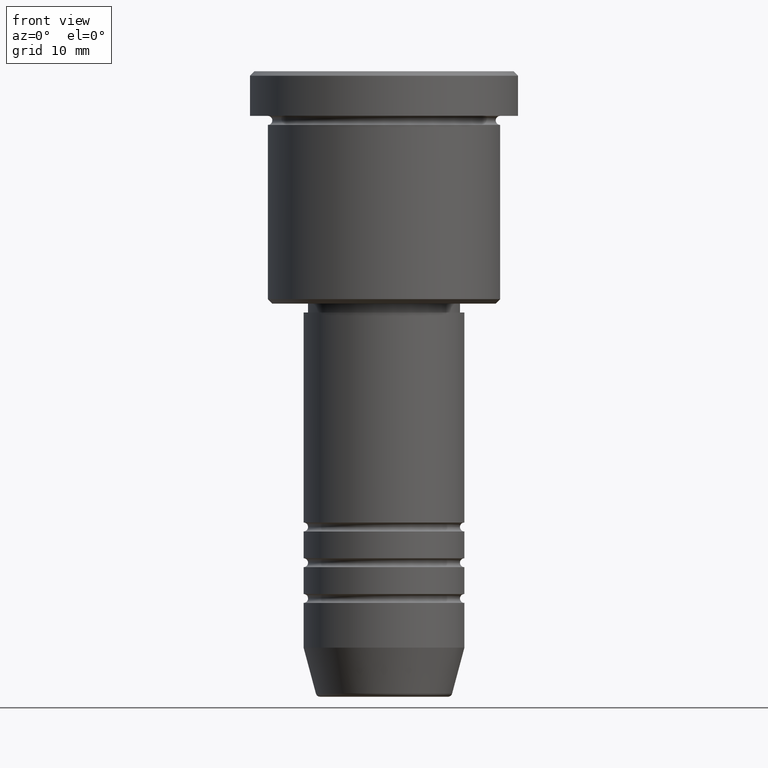
[diagram: clean part render]
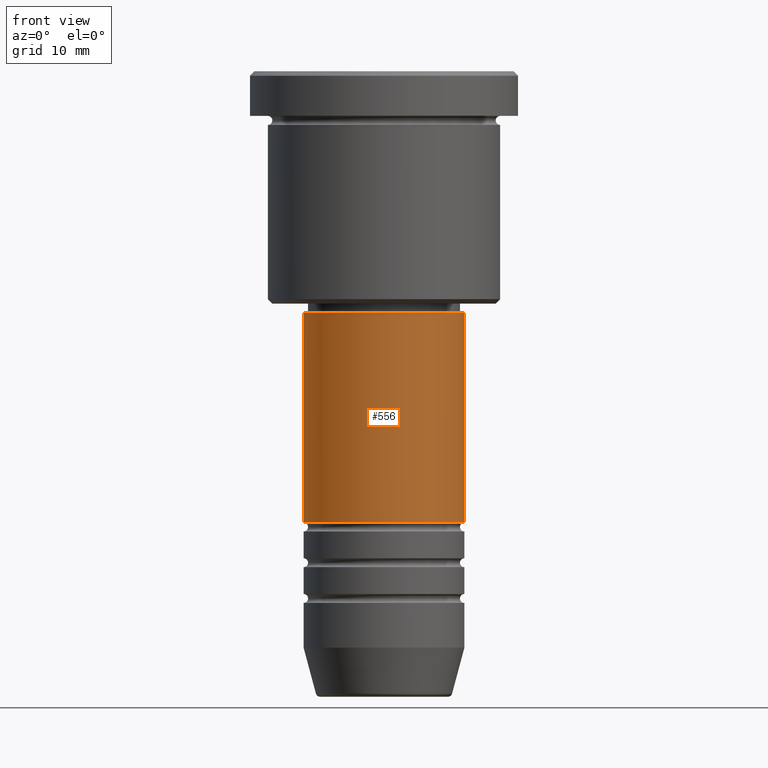
[diagram: same view with one face highlighted and labeled with its STEP entity id]
A machine part, front view. The second image highlights one B-rep face of the part: STEP entity #556.
In plain terms, the highlighted cylindrical surface (partial cylindrical patch) has radius 9 mm, axis along (-0, -0, 1).
Its self-contained STEP definition (entity closure, byte-faithful):
#37 = DIRECTION ( 'NONE',  ( -0.000000000000000000, -0.000000000000000000, 1.000000000000000000 ) ) ;
#45 = VERTEX_POINT ( 'NONE', #822 ) ;
#50 = ORIENTED_EDGE ( 'NONE', *, *, #578, .T. ) ;
#66 = VECTOR ( 'NONE', #989, 1000.000000000000000 ) ;
#90 = DIRECTION ( 'NONE',  ( 1.000000000000000000, 0.000000000000000000, 0.000000000000000000 ) ) ;
#190 = ORIENTED_EDGE ( 'NONE', *, *, #243, .T. ) ;
#211 = EDGE_LOOP ( 'NONE', ( #883, #50, #190, #422 ) ) ;
#243 = EDGE_CURVE ( 'NONE', #870, #45, #516, .T. ) ;
#263 = EDGE_CURVE ( 'NONE', #436, #691, #659, .T. ) ;
#281 = CARTESIAN_POINT ( 'NONE',  ( -8.999999999999998224, 1.102182119232617714E-15, -27.00000000000000355 ) ) ;
#317 = EDGE_CURVE ( 'NONE', #691, #45, #550, .T. ) ;
#413 = AXIS2_PLACEMENT_3D ( 'NONE', #619, #910, #90 ) ;
#422 = ORIENTED_EDGE ( 'NONE', *, *, #317, .F. ) ;
#436 = VERTEX_POINT ( 'NONE', #903 ) ;
#437 = AXIS2_PLACEMENT_3D ( 'NONE', #988, #1166, #687 ) ;
#474 = CIRCLE ( 'NONE', #413, 9.000000000000001776 ) ;
#502 = DIRECTION ( 'NONE',  ( 1.000000000000000000, 0.000000000000000000, 0.000000000000000000 ) ) ;
#516 = LINE ( 'NONE', #891, #66 ) ;
#550 = CIRCLE ( 'NONE', #999, 8.999999999999998224 ) ;
#556 = ADVANCED_FACE ( 'NONE', ( #792 ), #1092, .T. ) ;
#578 = EDGE_CURVE ( 'NONE', #436, #870, #474, .T. ) ;
#619 = CARTESIAN_POINT ( 'NONE',  ( 0.000000000000000000, 0.000000000000000000, -50.49999999999999289 ) ) ;
#659 = LINE ( 'NONE', #750, #1019 ) ;
#665 = CARTESIAN_POINT ( 'NONE',  ( 9.000000000000001776, 0.000000000000000000, -50.49999999999999289 ) ) ;
#669 = CARTESIAN_POINT ( 'NONE',  ( 0.000000000000000000, 0.000000000000000000, -27.00000000000000355 ) ) ;
#687 = DIRECTION ( 'NONE',  ( 1.000000000000000000, 0.000000000000000000, 0.000000000000000000 ) ) ;
#691 = VERTEX_POINT ( 'NONE', #281 ) ;
#750 = CARTESIAN_POINT ( 'NONE',  ( -9.000000000000000000, 1.102182119232617714E-15, 0.000000000000000000 ) ) ;
#792 = FACE_OUTER_BOUND ( 'NONE', #211, .T. ) ;
#822 = CARTESIAN_POINT ( 'NONE',  ( 8.999999999999998224, 0.000000000000000000, -27.00000000000000355 ) ) ;
#870 = VERTEX_POINT ( 'NONE', #665 ) ;
#883 = ORIENTED_EDGE ( 'NONE', *, *, #263, .F. ) ;
#891 = CARTESIAN_POINT ( 'NONE',  ( 9.000000000000000000, 0.000000000000000000, 0.000000000000000000 ) ) ;
#903 = CARTESIAN_POINT ( 'NONE',  ( -9.000000000000001776, 1.102182119232617911E-15, -50.49999999999999289 ) ) ;
#910 = DIRECTION ( 'NONE',  ( -0.000000000000000000, -0.000000000000000000, 1.000000000000000000 ) ) ;
#988 = CARTESIAN_POINT ( 'NONE',  ( 0.000000000000000000, 0.000000000000000000, 0.000000000000000000 ) ) ;
#989 = DIRECTION ( 'NONE',  ( -0.000000000000000000, -0.000000000000000000, 1.000000000000000000 ) ) ;
#999 = AXIS2_PLACEMENT_3D ( 'NONE', #669, #37, #502 ) ;
#1019 = VECTOR ( 'NONE', #1033, 1000.000000000000000 ) ;
#1033 = DIRECTION ( 'NONE',  ( -0.000000000000000000, -0.000000000000000000, 1.000000000000000000 ) ) ;
#1092 = CYLINDRICAL_SURFACE ( 'NONE', #437, 9.000000000000000000 ) ;
#1166 = DIRECTION ( 'NONE',  ( -0.000000000000000000, -0.000000000000000000, 1.000000000000000000 ) ) ;